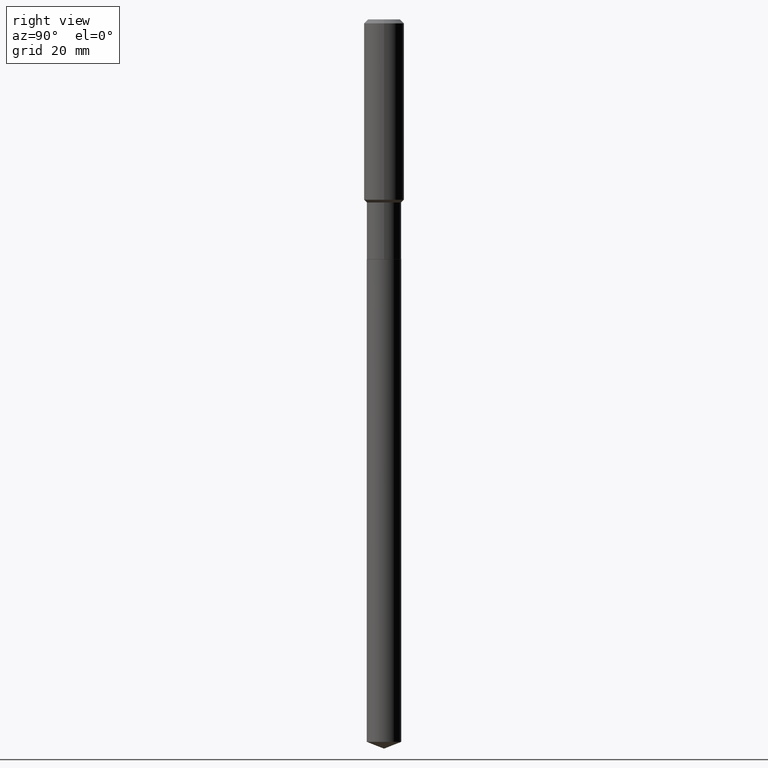
[diagram: clean part render]
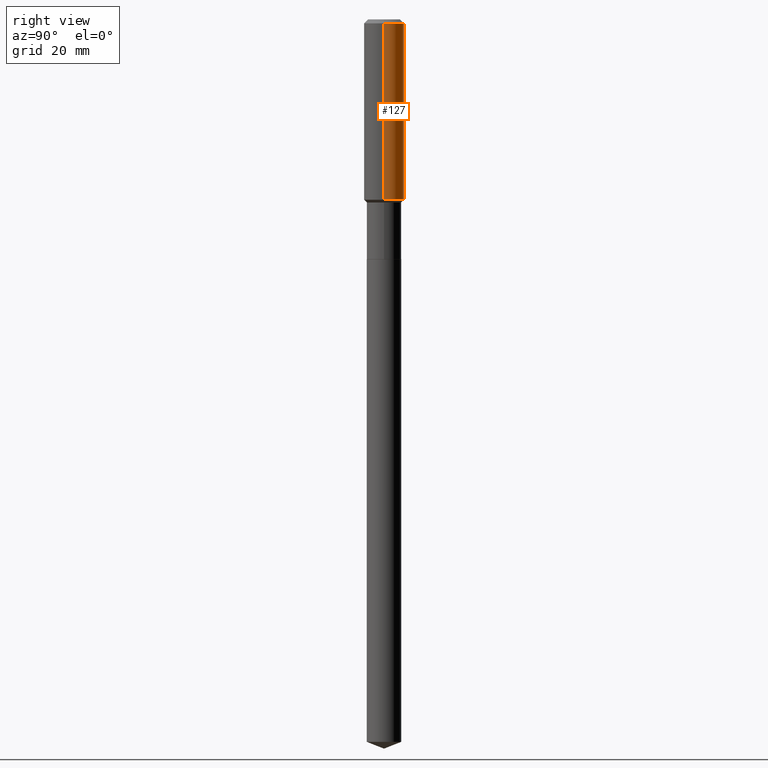
[diagram: same view with one face highlighted and labeled with its STEP entity id]
A machine part, right view. The second image highlights one B-rep face of the part: STEP entity #127.
In plain terms, the highlighted cylindrical surface (edge-blend (fillet) strip) has radius 5 mm, axis along (-0, 0, 1).
Its self-contained STEP definition (entity closure, byte-faithful):
#14 = DIRECTION ( 'NONE',  ( -2.445468806185136597E-29, 3.491481338843145583E-15, 1.000000000000000000 ) ) ;
#18 = DIRECTION ( 'NONE',  ( 1.000000000000000000, -6.982962677686265922E-15, 0.000000000000000000 ) ) ;
#23 = VERTEX_POINT ( 'NONE', #187 ) ;
#29 = DIRECTION ( 'NONE',  ( 1.000000000000000000, -6.982962677686265922E-15, 0.000000000000000000 ) ) ;
#35 = VECTOR ( 'NONE', #282, 39.37007874015748143 ) ;
#43 = CARTESIAN_POINT ( 'NONE',  ( -0.1968500000000002192, -4.786979538617699171E-15, -1.771649999999999725 ) ) ;
#49 = CARTESIAN_POINT ( 'NONE',  ( 0.1968500000000001082, -1.374596203102542397E-15, 9.598753983154305062E-30 ) ) ;
#60 = AXIS2_PLACEMENT_3D ( 'NONE', #126, #212, #304 ) ;
#74 = CARTESIAN_POINT ( 'NONE',  ( 0.1968500000000000250, -1.512055823412797189E-15, -0.03937000000000026589 ) ) ;
#79 = EDGE_LOOP ( 'NONE', ( #277, #455, #441, #272 ) ) ;
#91 = LINE ( 'NONE', #362, #35 ) ;
#94 = CIRCLE ( 'NONE', #245, 0.1968500000000002192 ) ;
#126 = CARTESIAN_POINT ( 'NONE',  ( 0.000000000000000000, 0.000000000000000000, 0.000000000000000000 ) ) ;
#127 = ADVANCED_FACE ( 'NONE', ( #283 ), #242, .T. ) ;
#135 = VERTEX_POINT ( 'NONE', #43 ) ;
#141 = VERTEX_POINT ( 'NONE', #74 ) ;
#176 = AXIS2_PLACEMENT_3D ( 'NONE', #365, #14, #29 ) ;
#187 = CARTESIAN_POINT ( 'NONE',  ( -0.1968500000000000250, -1.762867891792098679E-15, -0.03937000000000026589 ) ) ;
#212 = DIRECTION ( 'NONE',  ( -2.445468806185136597E-29, 3.491481338843145583E-15, 1.000000000000000000 ) ) ;
#242 = CYLINDRICAL_SURFACE ( 'NONE', #60, 0.1968500000000001082 ) ;
#245 = AXIS2_PLACEMENT_3D ( 'NONE', #326, #459, #18 ) ;
#272 = ORIENTED_EDGE ( 'NONE', *, *, #466, .F. ) ;
#277 = ORIENTED_EDGE ( 'NONE', *, *, #298, .T. ) ;
#279 = CARTESIAN_POINT ( 'NONE',  ( 0.1968500000000002192, -7.560279117064000145E-15, -1.771649999999999725 ) ) ;
#282 = DIRECTION ( 'NONE',  ( -2.445468806185136877E-29, 3.491481338843145188E-15, 1.000000000000000000 ) ) ;
#283 = FACE_OUTER_BOUND ( 'NONE', #79, .T. ) ;
#298 = EDGE_CURVE ( 'NONE', #361, #135, #94, .T. ) ;
#303 = CIRCLE ( 'NONE', #176, 0.1968500000000000250 ) ;
#304 = DIRECTION ( 'NONE',  ( 1.000000000000000000, -6.982962677686266711E-15, 4.876176775795935793E-29 ) ) ;
#326 = CARTESIAN_POINT ( 'NONE',  ( 4.332514810477896474E-29, -6.185682913961458537E-15, -1.771649999999999725 ) ) ;
#361 = VERTEX_POINT ( 'NONE', #279 ) ;
#362 = CARTESIAN_POINT ( 'NONE',  ( -0.1968500000000001082, 1.398703375343757985E-15, -9.682923725166787881E-30 ) ) ;
#365 = CARTESIAN_POINT ( 'NONE',  ( 9.627810689950948900E-31, -1.374596203102555561E-16, -0.03937000000000026589 ) ) ;
#368 = EDGE_CURVE ( 'NONE', #135, #23, #91, .T. ) ;
#397 = LINE ( 'NONE', #49, #401 ) ;
#398 = DIRECTION ( 'NONE',  ( -2.445468806185136877E-29, 3.491481338843145188E-15, 1.000000000000000000 ) ) ;
#401 = VECTOR ( 'NONE', #398, 39.37007874015748143 ) ;
#441 = ORIENTED_EDGE ( 'NONE', *, *, #481, .F. ) ;
#455 = ORIENTED_EDGE ( 'NONE', *, *, #368, .T. ) ;
#459 = DIRECTION ( 'NONE',  ( -2.445468806185136597E-29, 3.491481338843145583E-15, 1.000000000000000000 ) ) ;
#466 = EDGE_CURVE ( 'NONE', #361, #141, #397, .T. ) ;
#481 = EDGE_CURVE ( 'NONE', #141, #23, #303, .T. ) ;